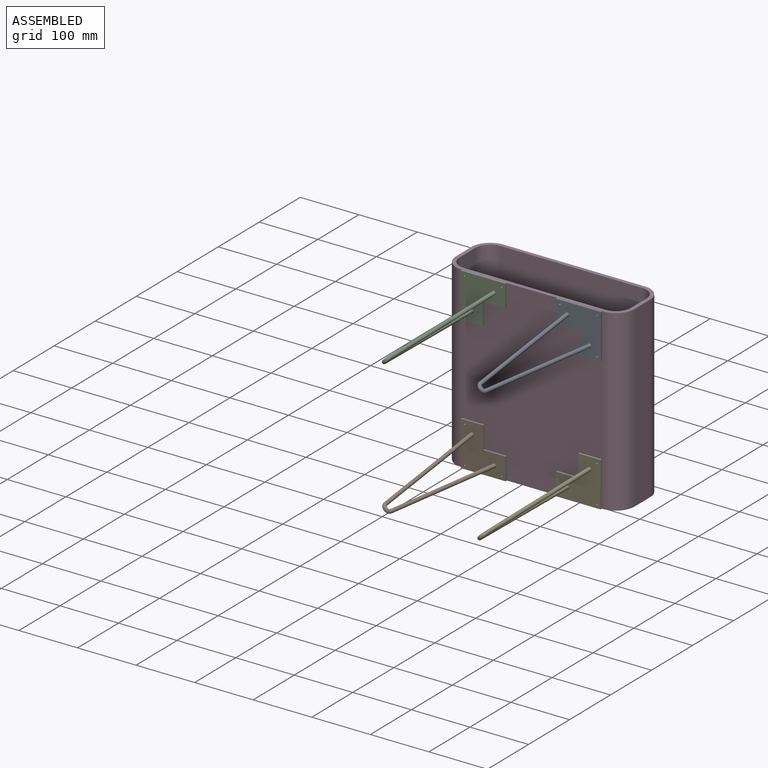
[diagram: assembled view]
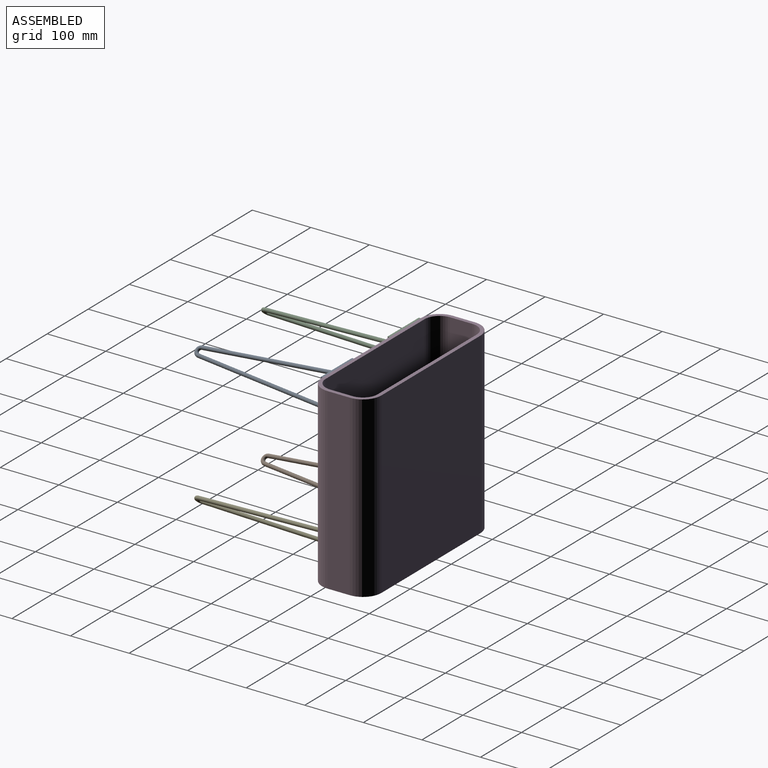
[diagram: assembled view, second angle]
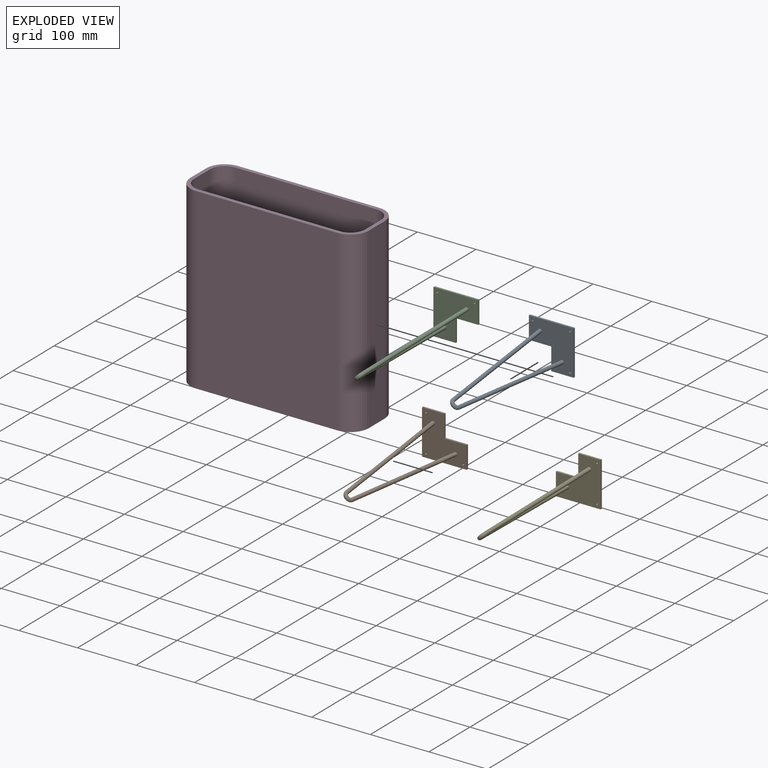
[diagram: exploded view]
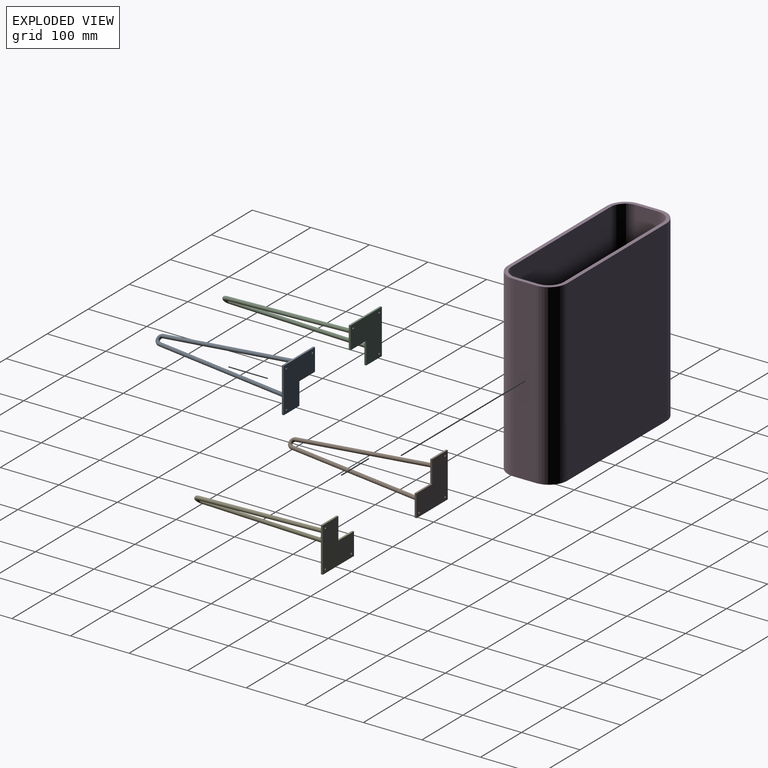
[diagram: exploded view, second angle]
ASSEMBLY  parts=5 mates=2
PART A: 15 faces, bbox 77.4x245.4x77.4 mm
  f0: plane 76.2x3.18mm, normal (-1,0,0), area 241.9mm2, adj f1,f5,f6,f7
  f1: plane 38.1x3.18mm, normal (0,0,-1), area 121mm2, adj f0,f2,f6,f7
  f2: plane 38.1x3.18mm, normal (1,0,0), area 121mm2, adj f1,f3,f6,f7
  f3: plane 38.1x3.18mm, normal (0,0,-1), area 121mm2, adj f2,f4,f6,f7
  f4: plane 38.1x3.18mm, normal (1,0,0), area 121mm2, adj f3,f5,f6,f7
  f5: plane 76.2x3.18mm, normal (0,0,1), area 241.9mm2, adj f0,f4,f6,f7
  f6: plane 77.08x77.08mm, normal (0,-1,0), area 4283.6mm2, adj f0,f1,f2,f3,f4,f5,f8,f9
  f7: plane 76.2x76.2mm, normal (0,1,0), area 4331.1mm2, adj f0,f1,f2,f3,f4,f5,f8,f9
  f8: cylinder r=1.59mm len=3.18mm, axis (0,-1,0), area 31.7mm2, adj f6,f7
  f9: cylinder r=1.59mm len=3.18mm, axis (0,-1,0), area 31.7mm2, adj f6,f7
  f10: cylinder r=1.59mm len=3.18mm, axis (0,-1,0), area 31.7mm2, adj f6,f7
  f11: plane 6.61x6.61mm, normal (0.12,0.98,0.12), area 15.8mm2, adj f6,f14
  f12: bspline ~232.34x27.07mm, area 4652.9mm2, adj f6,f13
  f13: bspline ~15.25x15.24mm, area 375.5mm2, adj f12,f14
  f14: bspline ~233.47x21.05mm, area 4650.6mm2, adj f6,f11,f13
PART B: same geometry as A
PART C: same geometry as A
PART D: 18 faces, bbox 304.8x101.6x304.8 mm
  f0: plane 304.8x38.1mm, normal (-1,0,0), area 11612.9mm2, adj f1,f3,f7,f9
  f1: plane 304.8x101.6mm, normal (0,0,-1), area 4688.5mm2, adj f0,f2,f4,f5,f6,f7,f8,f9
  f2: plane 304.8x38.1mm, normal (1,0,0), area 11612.9mm2, adj f1,f3,f6,f8
  f3: plane 304.8x101.6mm, normal (0,0,1), area 4688.5mm2, adj f0,f2,f4,f5,f6,f7,f8,f9
  f4: plane 304.8x241.3mm, normal (0,-1,0), area 73548.2mm2, adj f1,f3,f8,f9
  f5: plane 304.8x241.3mm, normal (0,1,0), area 73548.2mm2, adj f1,f3,f6,f7
  f6: cylinder r=31.75mm len=304.8mm, axis (0,0,1), area 15201.2mm2, adj f1,f2,f3,f5
  f7: cylinder r=31.75mm len=304.8mm, axis (0,0,-1), area 15201.2mm2, adj f0,f1,f3,f5
  f8: cylinder r=31.75mm len=304.8mm, axis (0,0,-1), area 15201.2mm2, adj f1,f2,f3,f4
  f9: cylinder r=31.75mm len=304.8mm, axis (0,0,1), area 15201.2mm2, adj f0,f1,f3,f4
  f10: plane 304.8x38.1mm, normal (-1,0,0), area 11612.9mm2, adj f1,f3,f11,f17
  f11: cylinder r=25.4mm len=304.8mm, axis (0,0,1), area 12161mm2, adj f1,f3,f10,f12
  f12: plane 304.8x241.3mm, normal (0,-1,0), area 73548.2mm2, adj f1,f3,f11,f13
  f13: cylinder r=25.4mm len=304.8mm, axis (0,0,1), area 12161mm2, adj f1,f3,f12,f14
  f14: plane 304.8x38.1mm, normal (1,0,0), area 11612.9mm2, adj f1,f3,f13,f15
  f15: cylinder r=25.4mm len=304.8mm, axis (0,0,1), area 12161mm2, adj f1,f3,f14,f16
  f16: plane 304.8x241.3mm, normal (0,1,0), area 73548.2mm2, adj f1,f3,f15,f17
  f17: cylinder r=25.4mm len=304.8mm, axis (0,0,1), area 12161mm2, adj f1,f3,f10,f16
PART E: same geometry as A
PLACE A rot(axis=(0,1,0),90deg) t=(70.86,-16.61,228.13)mm
PLACE B rot(axis=(0,-1,0),90deg) t=(-15.5,-16.61,-76.67)mm
PLACE C t=(-92.14,-16.61,151.93)mm
PLACE D t=(-124.49,84.99,-76.67)mm fixed
PLACE E rot(axis=(0,1,0),180deg) t=(146.71,-16.61,-0.47)mm
MATE parallel D.f4 <-> A.f7  axis (0,-1,0) through (27.91,-16.61,75.73)mm
MATE parallel D.f4 <-> C.f7  axis (0,-1,0) through (-92.74,-16.61,75.73)mm
